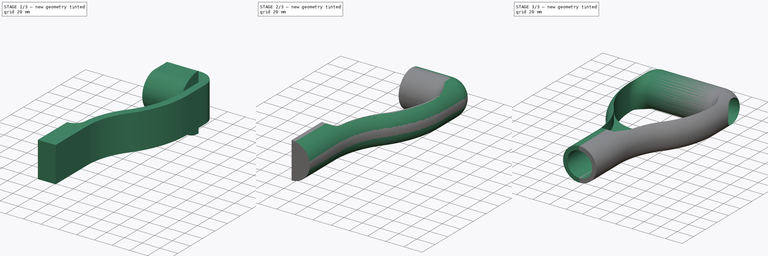
[diagram: build sequence overview — one tinted view per stage of 3, left to right]
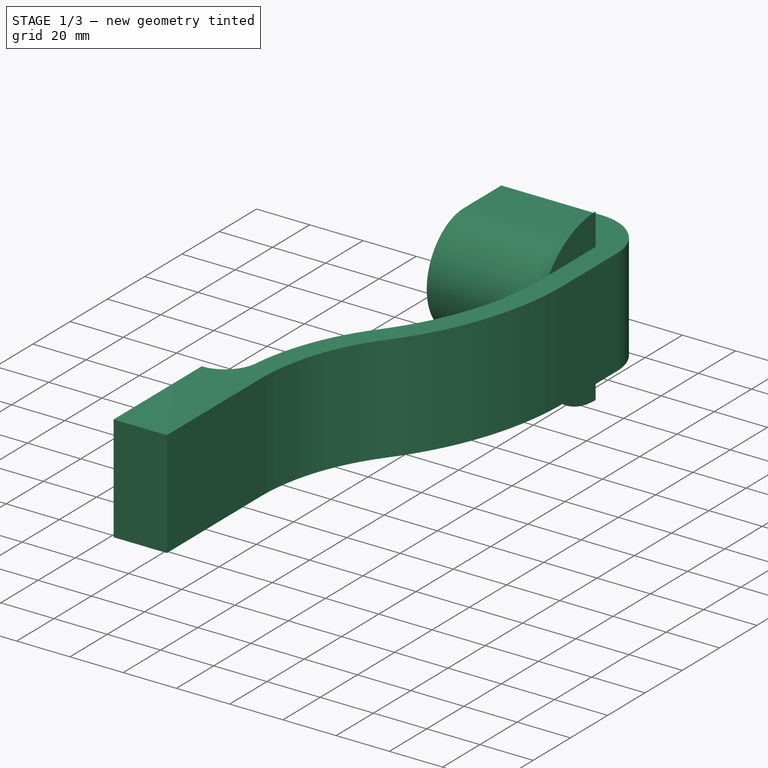
[diagram: stage 1 of 3 — iso view after this stage's code; geometry added in this stage tinted green]
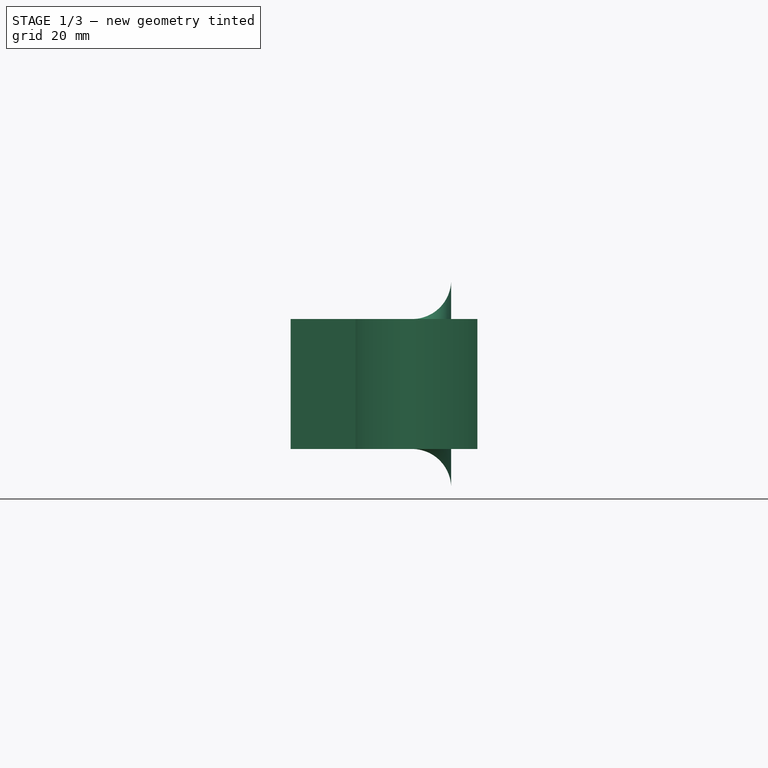
[diagram: stage 1 of 3 — front view after this stage's code; geometry added in this stage tinted green]
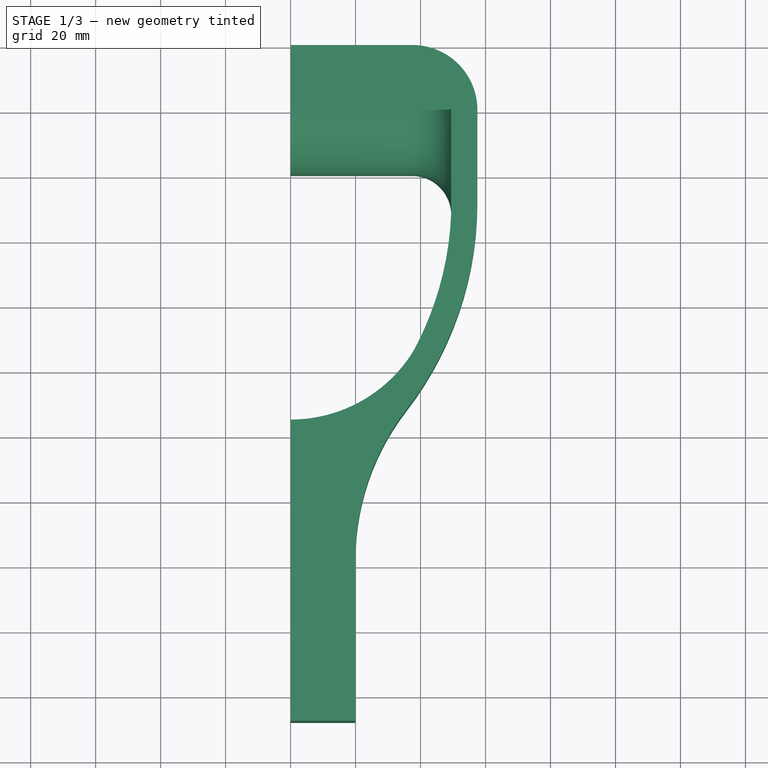
[diagram: stage 1 of 3 — top view after this stage's code; geometry added in this stage tinted green]
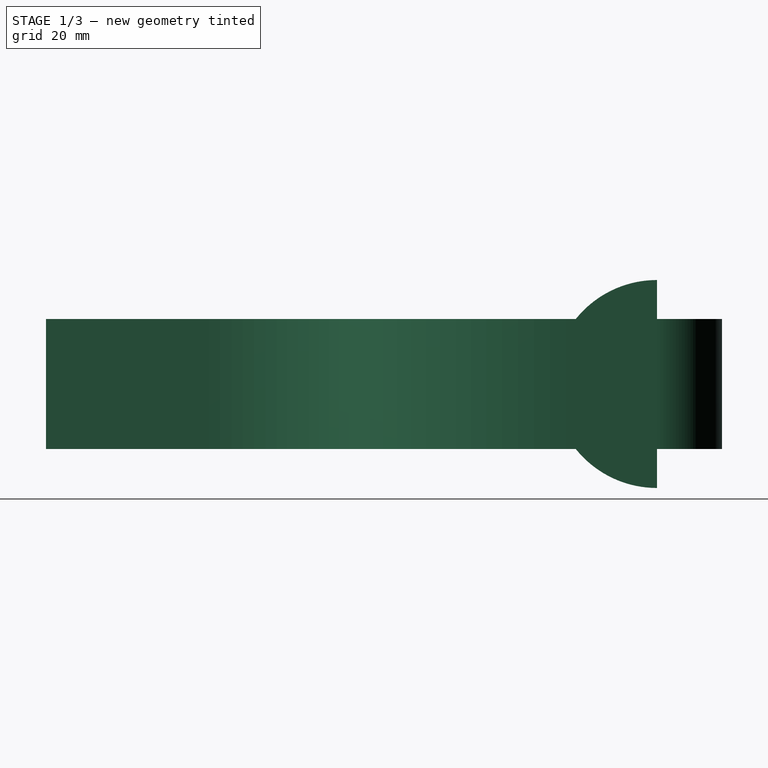
[diagram: stage 1 of 3 — right view after this stage's code; geometry added in this stage tinted green]
FCSTD DOCUMENT  (FreeCAD 1.1R20260325 (Git shallow))
Label: 26-WF-20-T_HANDLE_2
License: All rights reserved
LicenseURL: https://en.wikipedia.org/wiki/All_rights_reserved
objects: Sketcher::SketchObject×4, PartDesign::Pocket×3, PartDesign::Pad×2, App::Point×1, PartDesign::Revolution×1, PartDesign::SubtractivePipe×1, PartDesign::Mirrored×1, PartDesign::Body×1
note: 32 computed .brp shape members not serialized (recipe doc carries the construction recipe); baked Part::Feature solids carry a one-line shape summary decoded from their .brp

FEATURE [App::Point] Origin001
  Role = Origin
FEATURE [Sketcher::SketchObject] Sketch
  ArcFitTolerance = 1e-06
  AttachmentSupport = -> [Origin]
  ExternalTypes = [0]
  FullyConstrained = true
  MakeInternals = true
  MapMode = 5
  _ExternalGeoVersion = 1
  sketch-geometry (21):
    g0: LineSegment StartX=0 StartY=20 StartZ=0 EndX=37.5 EndY=20 EndZ=0
    g1: LineSegment StartX=57.5 StartY=0 StartZ=0 EndX=57.5 EndY=-28.0284 EndZ=0
    g2: ArcOfCircle CenterX=-47.5 CenterY=-28.0284 CenterZ=0 NormalX=0 NormalY=0 NormalZ=1 AngleXU=0 Radius=105 StartAngle=5.62592 EndAngle=6.28319
    g3: ArcOfCircle CenterX=95 CenterY=-138 CenterZ=0 NormalX=0 NormalY=0 NormalZ=1 AngleXU=0 Radius=75 StartAngle=2.48433 EndAngle=3.14159
    g4: LineSegment StartX=20 StartY=-138 StartZ=0 EndX=20 EndY=-188 EndZ=0
    g5: LineSegment StartX=20 StartY=-188 StartZ=0 EndX=0 EndY=-188 EndZ=0
    g6: ArcOfCircle CenterX=-47.5 CenterY=-28.0284 CenterZ=0 NormalX=0 NormalY=0 NormalZ=1 AngleXU=0 Radius=97 StartAngle=5.62592 EndAngle=6.24223
    g7: ArcOfCircle CenterX=95 CenterY=-138 CenterZ=0 NormalX=0 NormalY=0 NormalZ=1 AngleXU=0 Radius=83 StartAngle=2.48433 EndAngle=3.03922
    g8: LineSegment StartX=-2.3e-15 StartY=-140.74 StartZ=0 EndX=0 EndY=-188 EndZ=0
    g9: ArcOfCircle CenterX=0 CenterY=-50.5828 CenterZ=0 NormalX=0 NormalY=0 NormalZ=1 AngleXU=0 Radius=44.4172 StartAngle=4.71239 EndAngle=5.83988
    g10: LineSegment StartX=-8.2e-15 StartY=-95 StartZ=0 EndX=-2.3e-15 EndY=-140.74 EndZ=0
    g11: GeomPoint X=49.4187 Y=-32 Z=0
    g12: ArcOfCircle CenterX=0 CenterY=-128.24 CenterZ=0 NormalX=0 NormalY=0 NormalZ=1 AngleXU=0 Radius=12.5 StartAngle=4.71239 EndAngle=6.18081
    g13: LineSegment StartX=0 StartY=20 StartZ=0 EndX=0 EndY=0 EndZ=0
    g14: LineSegment StartX=0 StartY=0 StartZ=0 EndX=0 EndY=-20 EndZ=0
    g15: LineSegment StartX=0 StartY=-20 StartZ=0 EndX=37.4187 EndY=-20 EndZ=0
    g16: ArcOfCircle CenterX=37.4187 CenterY=-32 CenterZ=0 NormalX=0 NormalY=0 NormalZ=1 AngleXU=0 Radius=12 StartAngle=0 EndAngle=1.5708
    g17: LineSegment StartX=49.4187 StartY=-32 StartZ=0 EndX=49.4187 EndY=0 EndZ=0
    g18: LineSegment StartX=49.4187 StartY=0 StartZ=0 EndX=0 EndY=0 EndZ=0
    g19: GeomPoint [constr] X=57.5 Y=20 Z=0
    g20: ArcOfCircle CenterX=37.5 CenterY=-2.4e-15 CenterZ=0 NormalX=0 NormalY=0 NormalZ=1 AngleXU=0 Radius=20 StartAngle=1e-16 EndAngle=1.5708
  constraints (56):
    c: Horizontal(g0)
    c: Vertical(g1)
    c: Tangent(g2,g3) = 1.5708
    c: Vertical(g4)
    c: Coincident(g4,g5)
    c: PointOnObject(g5,g-2)
    c: Horizontal(g5)
    c: DistanceX(g0,g19) = 57.5
    c: Radius(g3) = 75
    c: Tangent(g3,g4) = -1.5708
    c: Radius(g2) = 105
    c: DistanceX(g5,g5) = 20
    c: DistanceY(g4,g4) = 50
    c: DistanceY(g0) = 20
    c: Tangent(g1,g2) = 1.5708
    c: Coincident(g6,g2)
    c: Coincident(g7,g3)
    c: PointOnObject(g8,g-2)
    c: Coincident(g8,g5)
    c: Tangent(g7,g6) = 1.5708
    c: DistanceY(g5) = -188
    c: Distance(g6,g2) = 8
    c: PointOnObject(g9,g-2)
    c: PointOnObject(g9,g-2)
    c: Tangent(g9,g6) = -1.5708
    c: Coincident(g9,g10)
    c: Coincident(g10,g8)
    c: PointOnObject(g12,g10)
    c: Coincident(g12,g8)
    c: Tangent(g12,g7) = 1.5708
    c: DistanceY(g5,g9) = 93
    c: Coincident(g6,g11)
    c: Radius(g12) = 12.5
    c: PointOnObject(g0,g-2)
    c: Coincident(g0,g13)
    c: Coincident(g13,g-1)
    c: Coincident(g13,g14)
    c: PointOnObject(g14,g-2)
    c: Coincident(g14,g15)
    c: Horizontal(g15)
    c: Coincident(g16,g15)
    c: Coincident(g16,g6)
    c: Coincident(g17,g18)
    c: Coincident(g18,g13)
    c: Horizontal(g18)
    c: Vertical(g17)
    c: Horizontal(g17,g16)
    c: Coincident(g6,g17)
    c: Vertical(g15,g16)
    c: Equal(g14,g13)
    c: Radius(g16) = 12
    c: PointOnObject(g19,g0)
    c: PointOnObject(g19,g1)
    c: PointOnObject(g1,g-1)
    c: Tangent(g20,g0) = 1.5708
    c: Tangent(g20,g1) = 1.5708
FEATURE [Sketcher::SketchObject] Sketch001
  ArcFitTolerance = 1e-06
  AttachmentSupport = -> [Origin]
  ExternalTypes = [0]
  FullyConstrained = false
  MakeInternals = true
  MapMode = 5
  Placement = pos=(0,0,0) rot=(0.57735,0.57735,0.57735;2.0944rad)
  _ExternalGeoVersion = 1
  sketch-geometry (6):
    g0: ArcOfCircle CenterX=0 CenterY=0 CenterZ=0 NormalX=0 NormalY=0 NormalZ=1 AngleXU=0 Radius=20 StartAngle=4.71239 EndAngle=7.85398
    g1: LineSegment StartX=6.1e-15 StartY=20 StartZ=0 EndX=6.1e-15 EndY=34.4298 EndZ=0
    g2: LineSegment StartX=6.1e-15 StartY=34.4298 StartZ=0 EndX=34.7776 EndY=34.4298 EndZ=0
    g3: LineSegment StartX=34.7776 StartY=34.4298 StartZ=0 EndX=34.7776 EndY=-34.4298 EndZ=0
    g4: LineSegment StartX=34.7776 StartY=-34.4298 StartZ=0 EndX=-7.1e-15 EndY=-34.4298 EndZ=0
    g5: LineSegment StartX=-3.7e-15 StartY=-34.4298 StartZ=0 EndX=-3.7e-15 EndY=-20 EndZ=0
  constraints (15):
    c: Coincident(g0,g-1)
    c: PointOnObject(g0,g-2)
    c: PointOnObject(g0,g-2)
    c: Radius(g0) = 20
    c: Vertical(g1)
    c: Coincident(g1,g2)
    c: Horizontal(g2)
    c: Coincident(g2,g3)
    c: Coincident(g3,g4)
    c: Horizontal(g4)
    c: Coincident(g4,g5)
    c: Vertical(g5)
    c: Coincident(g0,g5)
    c: Coincident(g0,g1)
    c: Symmetric(g3,g2,g-1)
FEATURE [Sketcher::SketchObject] Sketch004
  ArcFitTolerance = 1e-06
  AttachmentOffset = pos=(0,0,3) rot=(0,0,1;0rad)
  AttachmentSupport = -> [Origin]
  ExternalTypes = [0]
  FullyConstrained = true
  MakeInternals = true
  MapMode = 5
  Placement = pos=(3,0,0) rot=(0.57735,0.57735,0.57735;2.0944rad)
  _ExternalGeoVersion = 1
  sketch-geometry (2):
    g0: Circle CenterX=0 CenterY=0 CenterZ=0 NormalX=0 NormalY=0 NormalZ=1 AngleXU=0 Radius=6
    g1: Circle CenterX=0 CenterY=0 CenterZ=0 NormalX=0 NormalY=0 NormalZ=1 AngleXU=0 Radius=14
  constraints (4):
    c: Coincident(g0,g-1)
    c: Coincident(g1,g0)
    c: Diameter(g0) = 12
    c: Diameter(g1) = 28
FEATURE [PartDesign::Pad] Pad
  Direction = (0,0,1)
  Length = 40
  Length2 = 10
  Profile = -> Sketch [Edge17,Edge18,Edge19,Edge1,Edge7,Edge8,Edge9,Edge10,Edge11,Edge12,Edge13,Edge14,Edge15,Edge16]
  ReferenceAxis = -> Sketch [N_Axis]
  Refine = true
  SideType = 2
  Suppressed = false
  Type = 0
  Type2 = 0
FEATURE [PartDesign::Revolution] Revolution
  Angle = 180
  Angle2 = 0
  Axis = (1,0,0)
  Base = (0,0,0)
  BaseFeature = -> Pad
  FuseOrder = 0
  Midplane = true
  Profile = -> Sketch [InternalFace2,Edge8]
  ReferenceAxis = -> X_Axis
  Refine = true
  Reversed = true
  Suppressed = false
  Type = 0
FEATURE [PartDesign::Pad] Pad001
  BaseFeature = -> Revolution
  Direction = (0,0,1)
  Length = 6
  Length2 = 10
  Profile = -> Sketch [edge1,InternalFace1]
  ReferenceAxis = -> Sketch [N_Axis]
  Refine = true
  SideType = 2
  Suppressed = false
  Type = 0
  Type2 = 0
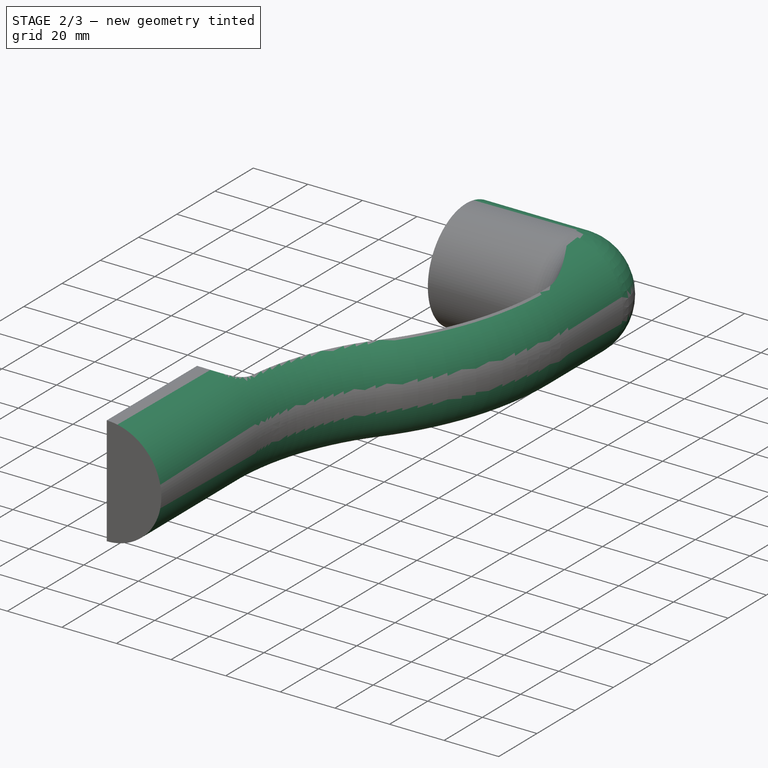
[diagram: stage 2 of 3 — iso view after this stage's code; geometry added in this stage tinted green]
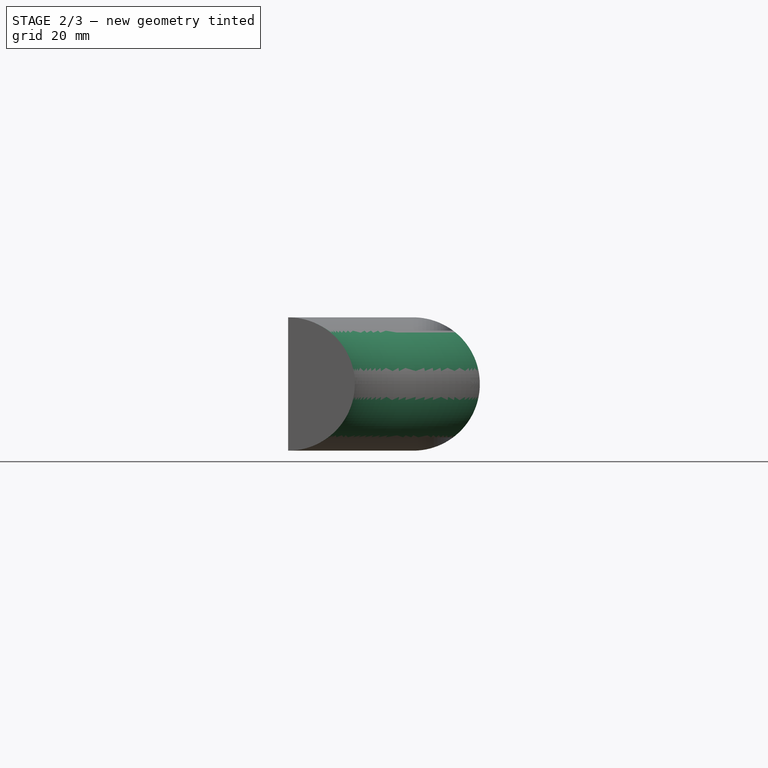
[diagram: stage 2 of 3 — front view after this stage's code; geometry added in this stage tinted green]
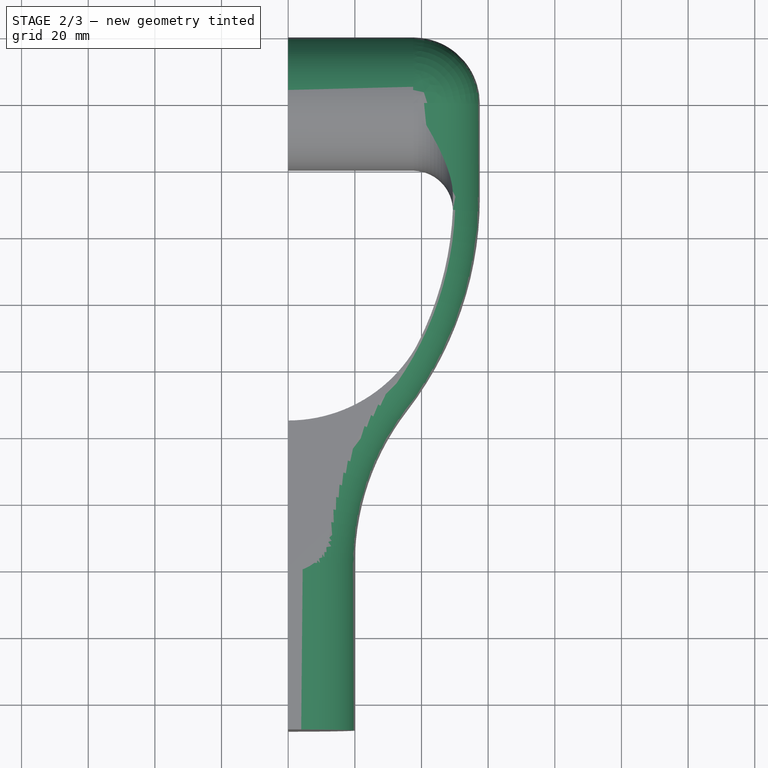
[diagram: stage 2 of 3 — top view after this stage's code; geometry added in this stage tinted green]
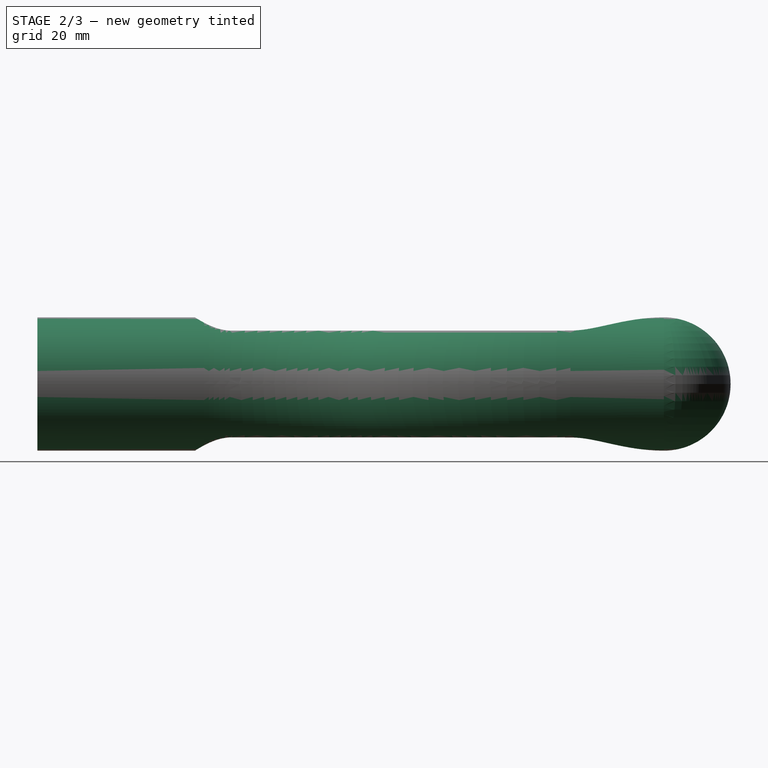
[diagram: stage 2 of 3 — right view after this stage's code; geometry added in this stage tinted green]
FEATURE [PartDesign::SubtractivePipe] SubtractivePipe
  AuxiliaryCurvilinear = true
  AuxiliarySpineTangent = false
  BaseFeature = -> Pad001
  Binormal = (0,0,0)
  Mode = 0
  Profile = -> Sketch001
  Refine = true
  Spine = -> Sketch [Edge10,Edge11,Edge12,Edge13,Edge14,Edge15]
  SpineTangent = false
  Suppressed = false
  Transformation = 0
  Transition = 0
FEATURE [PartDesign::Pocket] Pocket
  BaseFeature = -> SubtractivePipe
  Direction = (-1,0,0)
  Length = 5
  Length2 = 5
  Profile = -> Sketch004 [Edge1]
  ReferenceAxis = -> Sketch004 [N_Axis]
  Refine = true
  SideType = 0
  Suppressed = false
  Type = 0
  Type2 = 0
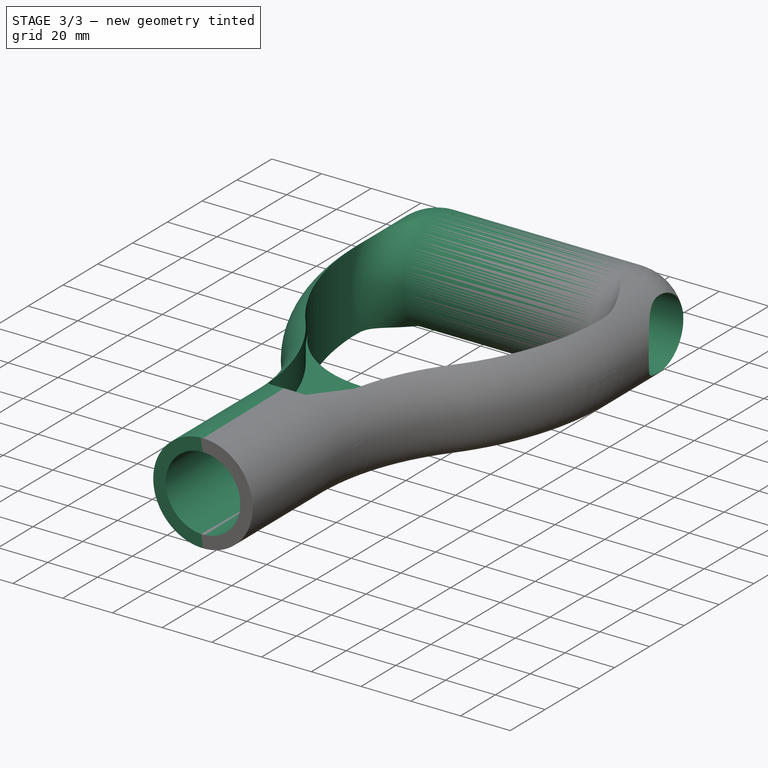
[diagram: stage 3 of 3 — iso view after this stage's code; geometry added in this stage tinted green]
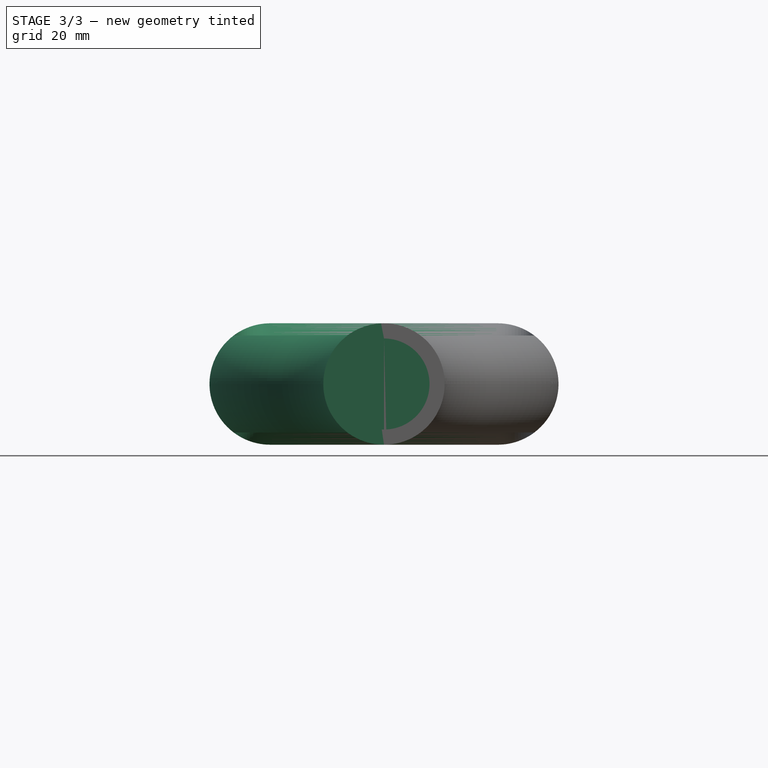
[diagram: stage 3 of 3 — front view after this stage's code; geometry added in this stage tinted green]
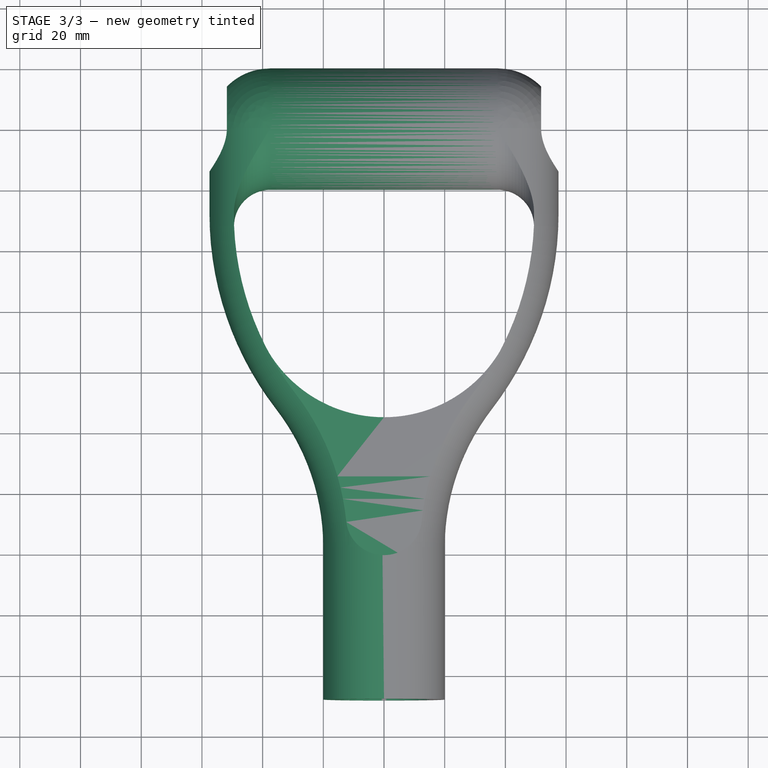
[diagram: stage 3 of 3 — top view after this stage's code; geometry added in this stage tinted green]
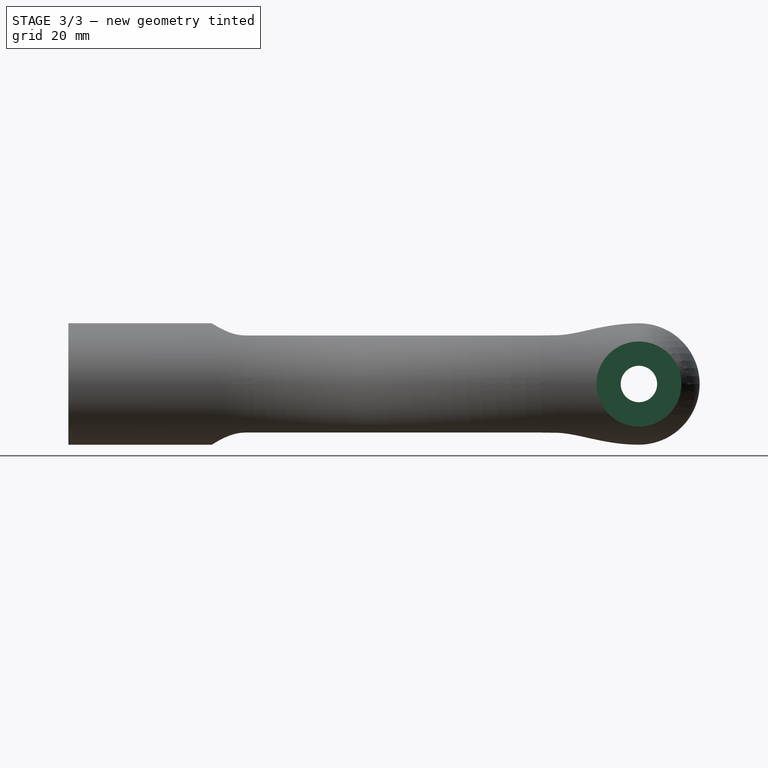
[diagram: stage 3 of 3 — right view after this stage's code; geometry added in this stage tinted green]
FEATURE [PartDesign::Pocket] Pocket001
  BaseFeature = -> Pocket
  Direction = (-1,0,0)
  Length = 5
  Length2 = 5
  Profile = -> Sketch004 [Edge2]
  ReferenceAxis = -> Sketch004 [N_Axis]
  Refine = true
  Reversed = true
  SideType = 0
  Suppressed = false
  Type = 1
  Type2 = 0
FEATURE [Sketcher::SketchObject] Sketch005
  ArcFitTolerance = 1e-06
  AttachmentSupport = -> [Pocket001]
  ExternalTypes = [0]
  FullyConstrained = true
  MakeInternals = true
  MapMode = 5
  Placement = pos=(0,-188,0) rot=(1,0,0;1.5708rad)
  _ExternalGeoVersion = 1
  sketch-geometry (1):
    g0: Circle CenterX=0 CenterY=0 CenterZ=0 NormalX=0 NormalY=0 NormalZ=1 AngleXU=0 Radius=15
  constraints (2):
    c: Coincident(g0,g-1)
    c: Diameter(g0) = 30
FEATURE [PartDesign::Pocket] Pocket002
  BaseFeature = -> Pocket001
  Direction = (0,1,-2e-16)
  Length = 40
  Length2 = 5
  Profile = -> Sketch005
  ReferenceAxis = -> Sketch005 [N_Axis]
  Refine = true
  SideType = 0
  Suppressed = false
  Type = 0
  Type2 = 0
FEATURE [PartDesign::Mirrored] Mirrored
  BaseFeature = -> Pocket002
  MirrorPlane = -> YZ_Plane
  Refine = true
  Suppressed = false
  TransformMode = 1
FEATURE [PartDesign::Body] Body
  AllowCompound = true
  Group = -> [Sketch,Pad,Revolution,Pad001,Sketch001,SubtractivePipe,Sketch004,Pocket,Pocket001,Sketch005,Pocket002,Mirrored]
  Origin = -> Origin
  Tip = -> Mirrored
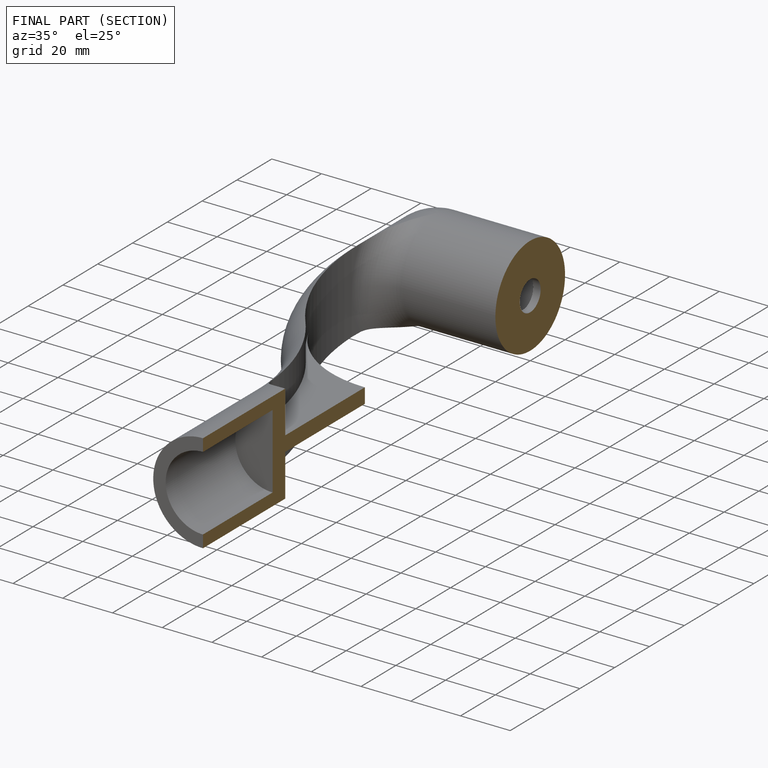
[diagram: finished part — half-section view (interior)]
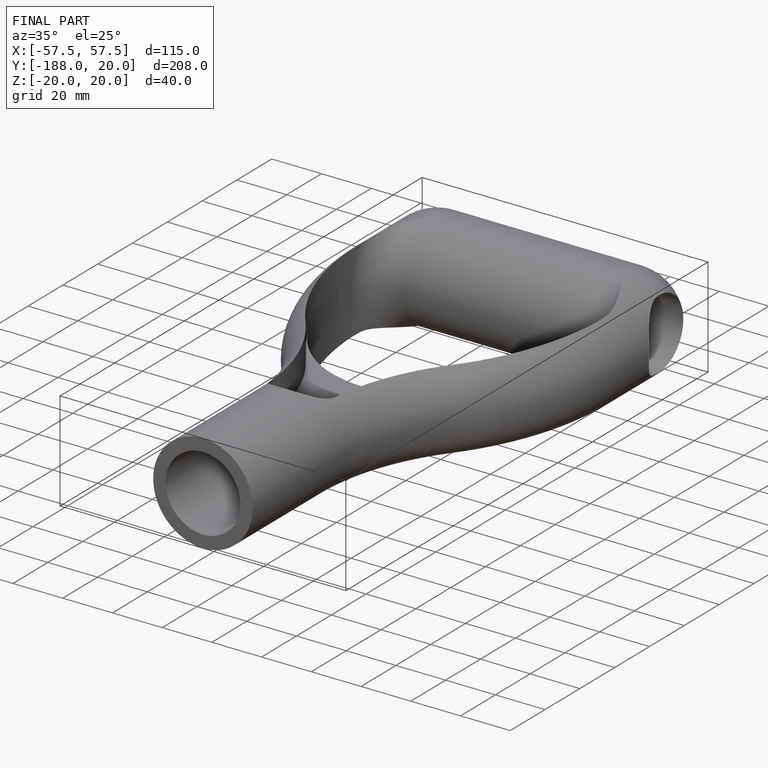
[diagram: finished part — iso view with bounding-box wireframe]
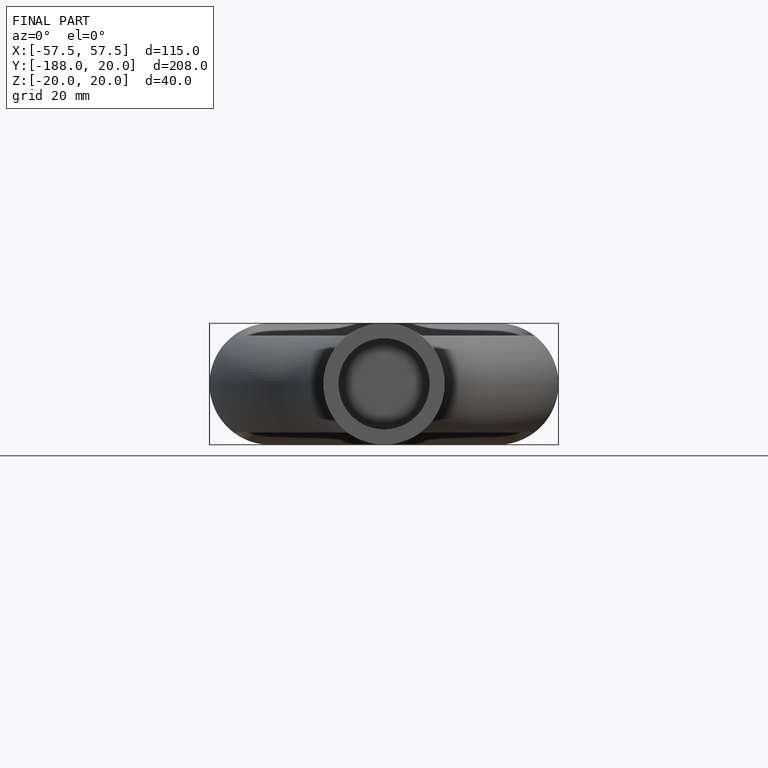
[diagram: finished part — front view with bounding-box wireframe]
